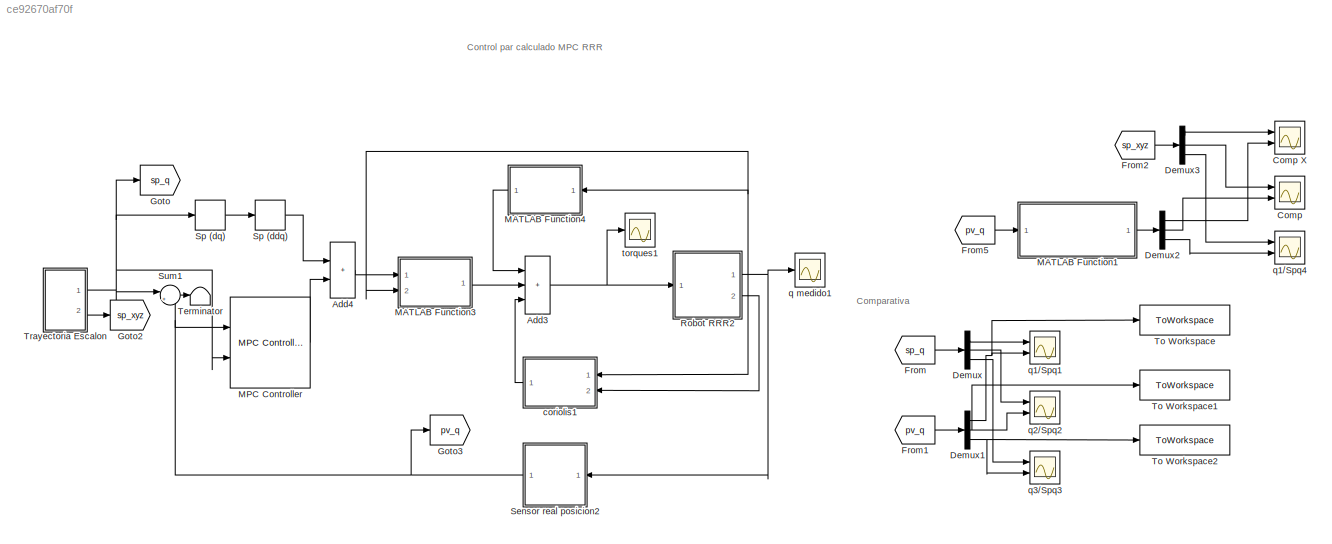
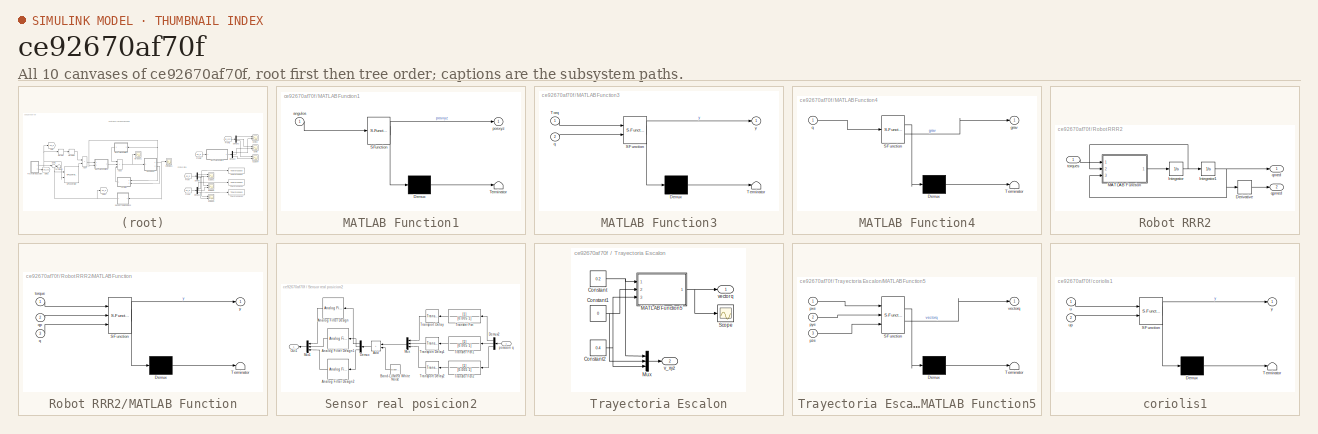
[diagram: thumbnail index - all 10 canvases of the model, root first then tree order]
MODEL slx_ce92670af70f
KIND model
CONFIG AbsTol = auto
CONFIG EnableMultiTasking = off
CONFIG FixedStep = auto
CONFIG MaxStep = auto
CONFIG MinStep = auto
CONFIG RelTol = 1e-3
CONFIG SampleTimeConstraint = Unconstrained
CONFIG SolverName = VariableStepAuto
CONFIG StartTime = 0.0
CONFIG StopTime = 110
BLOCK [Sum] Add3
  IconShape = rectangular
  Inputs = +++
  Ports = [3, 1]
BLOCK [Sum] Add4
  IconShape = rectangular
  Ports = [2, 1]
BLOCK [Scope] Comp
  Floating = off
  NumInputPorts = 2
  Ports = [2]
  ScopeSpecificationString = Simulink.scopes.TimeScopeBlockCfg('CurrentConfiguration', extmgr.ConfigurationSet(extmgr.Configuration('Core','General UI',true,'FigureColor',[1 1 1]),extmgr.Configuration('Core','Source UI',true),extmgr.Configuration('Sources','WiredSimulink',true,'DataLoggingVariableName','ScopeData1'),extmgr.Configuration('Visuals','Time Domain',true,'SerializedDisplays',{struct('MinYLimReal','-0.04339','MaxYLi...<+2048ch>
BLOCK [Scope] Comp X
  Floating = off
  NumInputPorts = 2
  Ports = [2]
  ScopeSpecificationString = Simulink.scopes.TimeScopeBlockCfg('CurrentConfiguration', extmgr.ConfigurationSet(extmgr.Configuration('Core','General UI',true,'FigureColor',[1 1 1]),extmgr.Configuration('Core','Source UI',true),extmgr.Configuration('Sources','WiredSimulink',true,'DataLoggingVariableName','ScopeData2'),extmgr.Configuration('Visuals','Time Domain',true,'SerializedDisplays',{struct('MinYLimReal','0.07687','MaxYLim...<+2042ch>
BLOCK [Demux] Demux
  Outputs = 3
  Ports = [1, 3]
BLOCK [Demux] Demux1
  Outputs = 3
  Ports = [1, 3]
BLOCK [Demux] Demux2
  Outputs = 3
  Ports = [1, 3]
BLOCK [Demux] Demux3
  Outputs = 3
  Ports = [1, 3]
BLOCK [From] From
  GotoTag = sp_q
BLOCK [From] From1
  GotoTag = pv_q
BLOCK [From] From2
  GotoTag = sp_xyz
BLOCK [From] From5
  GotoTag = pv_q
BLOCK [Goto] Goto
  GotoTag = sp_q
BLOCK [Goto] Goto2
  GotoTag = sp_xyz
BLOCK [Goto] Goto3
  GotoTag = pv_q
BLOCK [SubSystem] MATLAB Function1
  ErrorFcn = Stateflow.Translate.translate
  PermitHierarchicalResolution = ExplicitOnly
  Ports = [1, 1]
  RequestExecContextInheritance = off
  SFBlockType = MATLAB Function
  TreatAsAtomicUnit = on
BLOCK [Demux] MATLAB Function1/ Demux 
  Outputs = 1
  Ports = [1, 1]
BLOCK [S-Function] MATLAB Function1/ SFunction 
  EnableBusSupport = on
  FunctionName = sf_sfun
  PortCounts = [1 2]
  Ports = [1, 2]
  SFcnIsStateOwnerBlock = off
  SFunctionDeploymentMode = off
  Tag = Stateflow S-Function 1
BLOCK [Terminator] MATLAB Function1/ Terminator 
BLOCK [Inport] MATLAB Function1/angulos
BLOCK [Outport] MATLAB Function1/posxyz
BLOCK [SubSystem] MATLAB Function3
  ErrorFcn = Stateflow.Translate.translate
  PermitHierarchicalResolution = ExplicitOnly
  Ports = [2, 1]
  RequestExecContextInheritance = off
  SFBlockType = MATLAB Function
  TreatAsAtomicUnit = on
BLOCK [Demux] MATLAB Function3/ Demux 
  Outputs = 1
  Ports = [1, 1]
BLOCK [S-Function] MATLAB Function3/ SFunction 
  EnableBusSupport = on
  FunctionName = sf_sfun
  PortCounts = [2 2]
  Ports = [2, 2]
  SFcnIsStateOwnerBlock = off
  SFunctionDeploymentMode = off
  Tag = Stateflow S-Function 2
BLOCK [Terminator] MATLAB Function3/ Terminator 
BLOCK [Inport] MATLAB Function3/Torq
BLOCK [Inport] MATLAB Function3/q
  Port = 2
BLOCK [Outport] MATLAB Function3/y
BLOCK [SubSystem] MATLAB Function4
  ErrorFcn = Stateflow.Translate.translate
  PermitHierarchicalResolution = ExplicitOnly
  Ports = [1, 1]
  RequestExecContextInheritance = off
  SFBlockType = MATLAB Function
  TreatAsAtomicUnit = on
BLOCK [Demux] MATLAB Function4/ Demux 
  Outputs = 1
  Ports = [1, 1]
BLOCK [S-Function] MATLAB Function4/ SFunction 
  EnableBusSupport = on
  FunctionName = sf_sfun
  PortCounts = [1 2]
  Ports = [1, 2]
  SFcnIsStateOwnerBlock = off
  SFunctionDeploymentMode = off
  Tag = Stateflow S-Function 5
BLOCK [Terminator] MATLAB Function4/ Terminator 
BLOCK [Outport] MATLAB Function4/grav
BLOCK [Inport] MATLAB Function4/q
BLOCK [Reference] MPC Controller  REF=mpclib/MPC Controller  (lib defined in mdl_ae329e0e0455)
  Ports = [2, 1]
  SCDEnableBlockLinearizationSpecification = on
  SourceBlock = mpclib/MPC Controller
  SourceProductBaseCode = MP
  SourceType = MPC
BLOCK [SubSystem] Robot RRR2
  Ports = [1, 2]
  RequestExecContextInheritance = off
BLOCK [Derivative] Robot RRR2/Derivative
BLOCK [Integrator] Robot RRR2/Integrator
  Ports = [1, 1]
BLOCK [Integrator] Robot RRR2/Integrator1
  LimitOutput = on
  LowerSaturationLimit = -1.39626
  Ports = [1, 1]
  UpperSaturationLimit = 1.39626
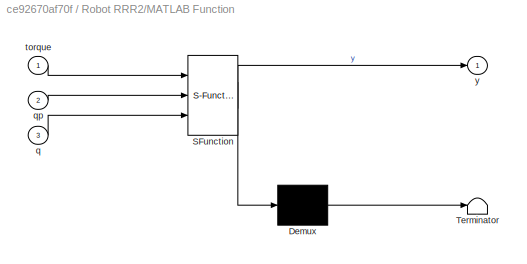
BLOCK [SubSystem] Robot RRR2/MATLAB Function
  ErrorFcn = Stateflow.Translate.translate
  PermitHierarchicalResolution = ExplicitOnly
  Ports = [3, 1]
  RequestExecContextInheritance = off
  SFBlockType = MATLAB Function
  TreatAsAtomicUnit = on
BLOCK [Demux] Robot RRR2/MATLAB Function/ Demux 
  Outputs = 1
  Ports = [1, 1]
BLOCK [S-Function] Robot RRR2/MATLAB Function/ SFunction 
  EnableBusSupport = on
  FunctionName = sf_sfun
  PortCounts = [3 2]
  Ports = [3, 2]
  SFcnIsStateOwnerBlock = off
  SFunctionDeploymentMode = off
  Tag = Stateflow S-Function 6
BLOCK [Terminator] Robot RRR2/MATLAB Function/ Terminator 
BLOCK [Inport] Robot RRR2/MATLAB Function/q
  Port = 3
BLOCK [Inport] Robot RRR2/MATLAB Function/qp
  Port = 2
BLOCK [Inport] Robot RRR2/MATLAB Function/torque
BLOCK [Outport] Robot RRR2/MATLAB Function/y
BLOCK [Outport] Robot RRR2/qmed
BLOCK [Outport] Robot RRR2/qpmed
  Port = 2
BLOCK [Inport] Robot RRR2/torques
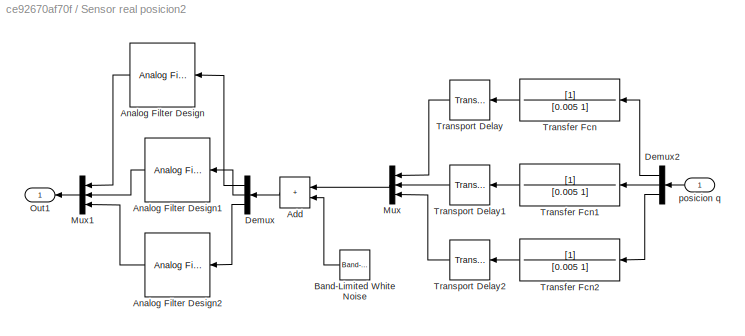
BLOCK [SubSystem] Sensor real posicion2
  NameLocation = top
  Ports = [1, 1]
  RequestExecContextInheritance = off
BLOCK [Sum] Sensor real posicion2/Add
  IconShape = rectangular
  Ports = [2, 1]
BLOCK [Reference] Sensor real posicion2/Analog Filter Design  REF=dsparch4/Analog
Filter Design
  Ports = [1, 1]
  SourceBlock = dsparch4/Analog\nFilter Design
  SourceProductBaseCode = DS
  SourceType = Analog Filter Design
BLOCK [Reference] Sensor real posicion2/Analog Filter Design1  REF=dsparch4/Analog
Filter Design
  Ports = [1, 1]
  SourceBlock = dsparch4/Analog\nFilter Design
  SourceProductBaseCode = DS
  SourceType = Analog Filter Design
BLOCK [Reference] Sensor real posicion2/Analog Filter Design2  REF=dsparch4/Analog
Filter Design
  Ports = [1, 1]
  SourceBlock = dsparch4/Analog\nFilter Design
  SourceProductBaseCode = DS
  SourceType = Analog Filter Design
BLOCK [Reference] Sensor real posicion2/Band-Limited White Noise  REF=simulink/Sources/Band-Limited
White Noise
  NameLocation = top
  Ports = [0, 1]
  SourceBlock = simulink/Sources/Band-Limited\nWhite Noise
  SourceProductBaseCode = SL
  SourceType = Band-Limited White Noise.
BLOCK [Demux] Sensor real posicion2/Demux
  NameLocation = top
  Outputs = 3
  Ports = [1, 3]
BLOCK [Demux] Sensor real posicion2/Demux2
  NameLocation = top
  Outputs = 3
  Ports = [1, 3]
BLOCK [Mux] Sensor real posicion2/Mux
  DisplayOption = bar
  Inputs = 3
  NameLocation = top
  Ports = [3, 1]
BLOCK [Mux] Sensor real posicion2/Mux1
  DisplayOption = bar
  Inputs = 3
  NameLocation = top
  Ports = [3, 1]
BLOCK [Outport] Sensor real posicion2/Out1
BLOCK [TransferFcn] Sensor real posicion2/Transfer Fcn
  Denominator = [0.005 1]
BLOCK [TransferFcn] Sensor real posicion2/Transfer Fcn1
  Denominator = [0.005 1]
BLOCK [TransferFcn] Sensor real posicion2/Transfer Fcn2
  Denominator = [0.005 1]
BLOCK [TransportDelay] Sensor real posicion2/Transport Delay
  DelayTime = 0.05
  NameLocation = top
  Ports = [1, 1]
BLOCK [TransportDelay] Sensor real posicion2/Transport Delay1
  DelayTime = 0.05
  NameLocation = top
  Ports = [1, 1]
BLOCK [TransportDelay] Sensor real posicion2/Transport Delay2
  DelayTime = 0.05
  NameLocation = top
  Ports = [1, 1]
BLOCK [Inport] Sensor real posicion2/posicion q
BLOCK [Derivative] Sp (ddq)
BLOCK [Derivative] Sp (dq)
BLOCK [Sum] Sum1
  Inputs = |+-
  NameLocation = top
  Ports = [2, 1]
BLOCK [Terminator] Terminator
BLOCK [ToWorkspace] To Workspace
  FixptAsFi = on
  MaxDataPoints = inf
  Ports = [1]
  SampleTime = 0.1
  VariableName = q1
BLOCK [ToWorkspace] To Workspace1
  FixptAsFi = on
  MaxDataPoints = inf
  Ports = [1]
  SampleTime = 0.1
  VariableName = q2
BLOCK [ToWorkspace] To Workspace2
  FixptAsFi = on
  MaxDataPoints = inf
  Ports = [1]
  SampleTime = 0.1
  VariableName = q3
BLOCK [SubSystem] Trayectoria Escalon
  Ports = [0, 2]
  RequestExecContextInheritance = off
BLOCK [Constant] Trayectoria Escalon/Constant
  Value = 0.2
BLOCK [Constant] Trayectoria Escalon/Constant1
  Value = 0
BLOCK [Constant] Trayectoria Escalon/Constant2
  Value = 0.4
BLOCK [SubSystem] Trayectoria Escalon/MATLAB Function5
  ErrorFcn = Stateflow.Translate.translate
  PermitHierarchicalResolution = ExplicitOnly
  Ports = [3, 1]
  RequestExecContextInheritance = off
  SFBlockType = MATLAB Function
  TreatAsAtomicUnit = on
BLOCK [Demux] Trayectoria Escalon/MATLAB Function5/ Demux 
  Outputs = 1
  Ports = [1, 1]
BLOCK [S-Function] Trayectoria Escalon/MATLAB Function5/ SFunction 
  EnableBusSupport = on
  FunctionName = sf_sfun
  PortCounts = [3 2]
  Ports = [3, 2]
  SFcnIsStateOwnerBlock = off
  SFunctionDeploymentMode = off
  Tag = Stateflow S-Function 10
BLOCK [Terminator] Trayectoria Escalon/MATLAB Function5/ Terminator 
BLOCK [Inport] Trayectoria Escalon/MATLAB Function5/pxe
BLOCK [Inport] Trayectoria Escalon/MATLAB Function5/pye
  Port = 2
BLOCK [Inport] Trayectoria Escalon/MATLAB Function5/pze
  Port = 3
BLOCK [Outport] Trayectoria Escalon/MATLAB Function5/vectorq
BLOCK [Mux] Trayectoria Escalon/Mux
  DisplayOption = bar
  Inputs = 3
  Ports = [3, 1]
BLOCK [Scope] Trayectoria Escalon/Scope
  Floating = off
  NumInputPorts = 1
  Ports = [1]
  ScopeSpecificationString = Simulink.scopes.TimeScopeBlockCfg('CurrentConfiguration', extmgr.ConfigurationSet(extmgr.Configuration('Core','General UI',true),extmgr.Configuration('Core','Source UI',true),extmgr.Configuration('Sources','WiredSimulink',true,'DataLoggingVariableName','ScopeData4'),extmgr.Configuration('Visuals','Time Domain',true,'SerializedDisplays',{struct('MinYLimReal','-0.13839','MaxYLimReal','1.24554','YLab...<+1444ch>
BLOCK [Outport] Trayectoria Escalon/v_xyz
  Port = 2
BLOCK [Outport] Trayectoria Escalon/vectorq
BLOCK [SubSystem] coriolis1
  ErrorFcn = Stateflow.Translate.translate
  PermitHierarchicalResolution = ExplicitOnly
  Ports = [2, 1]
  RequestExecContextInheritance = off
  SFBlockType = MATLAB Function
  TreatAsAtomicUnit = on
BLOCK [Demux] coriolis1/ Demux 
  Outputs = 1
  Ports = [1, 1]
BLOCK [S-Function] coriolis1/ SFunction 
  EnableBusSupport = on
  FunctionName = sf_sfun
  PortCounts = [2 2]
  Ports = [2, 2]
  SFcnIsStateOwnerBlock = off
  SFunctionDeploymentMode = off
  Tag = Stateflow S-Function 7
BLOCK [Terminator] coriolis1/ Terminator 
BLOCK [Inport] coriolis1/u
BLOCK [Inport] coriolis1/up
  Port = 2
BLOCK [Outport] coriolis1/y
BLOCK [Scope] q medido1
  Floating = off
  NumInputPorts = 1
  Ports = [1]
  ScopeSpecificationString = Simulink.scopes.TimeScopeBlockCfg('CurrentConfiguration', extmgr.ConfigurationSet(extmgr.Configuration('Core','General UI',true,'FigureColor',[1 1 1]),extmgr.Configuration('Core','Source UI',true),extmgr.Configuration('Sources','WiredSimulink',true,'DataLoggingVariableName','ScopeData7'),extmgr.Configuration('Visuals','Time Domain',true,'SerializedDisplays',{struct('MinYLimReal','-0.48397','MaxYLi...<+2123ch>
BLOCK [Scope] q1//Spq1
  Floating = off
  NumInputPorts = 2
  Ports = [2]
  ScopeSpecificationString = Simulink.scopes.TimeScopeBlockCfg('CurrentConfiguration', extmgr.ConfigurationSet(extmgr.Configuration('Core','General UI',true,'FigureColor',[1 1 1]),extmgr.Configuration('Core','Source UI',true),extmgr.Configuration('Sources','WiredSimulink',true,'DataLoggingVariableName','ScopeData3'),extmgr.Configuration('Visuals','Time Domain',true,'SerializedDisplays',{struct('MinYLimReal','-0.04068','MaxYLi...<+2043ch>
BLOCK [Scope] q1//Spq4
  Floating = off
  NumInputPorts = 2
  Ports = [2]
  ScopeSpecificationString = Simulink.scopes.TimeScopeBlockCfg('CurrentConfiguration', extmgr.ConfigurationSet(extmgr.Configuration('Core','General UI',true,'FigureColor',[1 1 1]),extmgr.Configuration('Core','Source UI',true),extmgr.Configuration('Sources','WiredSimulink',true,'DataLoggingVariableName','ScopeData4'),extmgr.Configuration('Visuals','Time Domain',true,'SerializedDisplays',{struct('MinYLimReal','0.15226','MaxYLim...<+2046ch>
BLOCK [Scope] q2//Spq2
  Floating = off
  NumInputPorts = 2
  Ports = [2]
  ScopeSpecificationString = Simulink.scopes.TimeScopeBlockCfg('CurrentConfiguration', extmgr.ConfigurationSet(extmgr.Configuration('Core','General UI',true,'FigureColor',[1 1 1]),extmgr.Configuration('Core','Source UI',true),extmgr.Configuration('Sources','WiredSimulink',true,'DataLoggingVariableName','ScopeData5'),extmgr.Configuration('Visuals','Time Domain',true,'SerializedDisplays',{struct('MinYLimReal','-0.14831','MaxYLi...<+2047ch>
BLOCK [Scope] q3//Spq3
  Floating = off
  NumInputPorts = 2
  Ports = [2]
  ScopeSpecificationString = Simulink.scopes.TimeScopeBlockCfg('CurrentConfiguration', extmgr.ConfigurationSet(extmgr.Configuration('Core','General UI',true,'FigureColor',[1 1 1]),extmgr.Configuration('Core','Source UI',true),extmgr.Configuration('Sources','WiredSimulink',true,'DataLoggingVariableName','ScopeData6'),extmgr.Configuration('Visuals','Time Domain',true,'SerializedDisplays',{struct('MinYLimReal','-0.10499','MaxYLi...<+2047ch>
BLOCK [Scope] torques1
  Floating = off
  NumInputPorts = 1
  Ports = [1]
  ScopeSpecificationString = Simulink.scopes.TimeScopeBlockCfg('CurrentConfiguration', extmgr.ConfigurationSet(extmgr.Configuration('Core','General UI',true,'FigureColor',[0 0 0]),extmgr.Configuration('Core','Source UI',true),extmgr.Configuration('Sources','WiredSimulink',true,'DataLoggingVariableName','ScopeData8'),extmgr.Configuration('Visuals','Time Domain',true,'SerializedDisplays',{struct('MinYLimReal','-6.54498','MaxYLi...<+2402ch>
ANNOTATION (root): Control par calculado MPC RRR
ANNOTATION (root): Comparativa
NET Add3:1 -> Robot RRR2:1, torques1:1
LINE Add4:1 -> MATLAB Function3:1
NET Demux1:1 -> To Workspace:1, q1//Spq1:2
NET Demux1:2 -> To Workspace1:1, q2//Spq2:2
NET Demux1:3 -> To Workspace2:1, q3//Spq3:2
LINE Demux2:1 -> Comp X:2
LINE Demux2:2 -> Comp:2
LINE Demux2:3 -> q1//Spq4:2
LINE Demux3:1 -> Comp X:1
LINE Demux3:2 -> Comp:1
LINE Demux3:3 -> q1//Spq4:1
LINE Demux:1 -> q1//Spq1:1
LINE Demux:2 -> q2//Spq2:1
LINE Demux:3 -> q3//Spq3:1
LINE From1:1 -> Demux1:1
LINE From2:1 -> Demux3:1
LINE From5:1 -> MATLAB Function1:1
LINE From:1 -> Demux:1
LINE MATLAB Function1:1 -> Demux2:1
LINE MATLAB Function3:1 -> Add3:2
LINE MATLAB Function4:1 -> Add3:1
LINE MPC Controller:1 -> Add4:2
LINE Robot RRR2/Derivative:1 -> Robot RRR2/qpmed:1
NET Robot RRR2/Integrator1:1 -> Robot RRR2/Derivative:1, Robot RRR2/MATLAB Function:3, Robot RRR2/qmed:1
NET Robot RRR2/Integrator:1 -> Robot RRR2/Integrator1:1, Robot RRR2/MATLAB Function:2
LINE Robot RRR2/MATLAB Function:1 -> Robot RRR2/Integrator:1
LINE Robot RRR2/torques:1 -> Robot RRR2/MATLAB Function:1
NET Robot RRR2:1 -> MATLAB Function3:2, MATLAB Function4:1, Sensor real posicion2:1, coriolis1:1, q medido1:1
LINE Robot RRR2:2 -> coriolis1:2
LINE Sensor real posicion2/Add:1 -> Sensor real posicion2/Demux:1
LINE Sensor real posicion2/Analog Filter Design1:1 -> Sensor real posicion2/Mux1:2
LINE Sensor real posicion2/Analog Filter Design2:1 -> Sensor real posicion2/Mux1:3
LINE Sensor real posicion2/Analog Filter Design:1 -> Sensor real posicion2/Mux1:1
LINE Sensor real posicion2/Band-Limited White Noise:1 -> Sensor real posicion2/Add:2
LINE Sensor real posicion2/Demux2:1 -> Sensor real posicion2/Transfer Fcn:1
LINE Sensor real posicion2/Demux2:2 -> Sensor real posicion2/Transfer Fcn1:1
LINE Sensor real posicion2/Demux2:3 -> Sensor real posicion2/Transfer Fcn2:1
LINE Sensor real posicion2/Demux:1 -> Sensor real posicion2/Analog Filter Design:1
LINE Sensor real posicion2/Demux:2 -> Sensor real posicion2/Analog Filter Design1:1
LINE Sensor real posicion2/Demux:3 -> Sensor real posicion2/Analog Filter Design2:1
LINE Sensor real posicion2/Mux1:1 -> Sensor real posicion2/Out1:1
LINE Sensor real posicion2/Mux:1 -> Sensor real posicion2/Add:1
LINE Sensor real posicion2/Transfer Fcn1:1 -> Sensor real posicion2/Transport Delay1:1
LINE Sensor real posicion2/Transfer Fcn2:1 -> Sensor real posicion2/Transport Delay2:1
LINE Sensor real posicion2/Transfer Fcn:1 -> Sensor real posicion2/Transport Delay:1
LINE Sensor real posicion2/Transport Delay1:1 -> Sensor real posicion2/Mux:2
LINE Sensor real posicion2/Transport Delay2:1 -> Sensor real posicion2/Mux:3
LINE Sensor real posicion2/Transport Delay:1 -> Sensor real posicion2/Mux:1
LINE Sensor real posicion2/posicion q:1 -> Sensor real posicion2/Demux2:1
NET Sensor real posicion2:1 -> Goto3:1, MPC Controller:1, Sum1:2
LINE Sp (ddq):1 -> Add4:1
LINE Sp (dq):1 -> Sp (ddq):1
LINE Sum1:1 -> Terminator:1
NET Trayectoria Escalon/Constant1:1 -> Trayectoria Escalon/MATLAB Function5:2, Trayectoria Escalon/Mux:2
NET Trayectoria Escalon/Constant2:1 -> Trayectoria Escalon/MATLAB Function5:3, Trayectoria Escalon/Mux:3
NET Trayectoria Escalon/Constant:1 -> Trayectoria Escalon/MATLAB Function5:1, Trayectoria Escalon/Mux:1
NET Trayectoria Escalon/MATLAB Function5:1 -> Trayectoria Escalon/Scope:1, Trayectoria Escalon/vectorq:1
LINE Trayectoria Escalon/Mux:1 -> Trayectoria Escalon/v_xyz:1
NET Trayectoria Escalon:1 -> Goto:1, MPC Controller:2, Sp (dq):1, Sum1:1
LINE Trayectoria Escalon:2 -> Goto2:1
LINE coriolis1:1 -> Add3:3
note: NET lines group one-source signal fan-out (src -> all destinations, sorted); 1:1 wires keep LINE
CHART MATLAB Function1 states=1 transitions=1
  STATE_LABEL 'eML_blk_kernel()'
  STATE_LABEL 'SCRIPT:\n%% Funcion cinematica directa\nfunction posxyz = cindinRRR(angulos)\n%% Vector angulo de 3 dim.\nth1=angulos(1);\nth2=angulos(2);\nth3=angulos(3);\n%% Valores eslabones\nL1=0.2;L2=0.2;L3=0.2;\n%% pos\nxe=cos(th1)*(L3*cos(th2+th3) + L2*cos(th2));\nye=sin(th1)*(L3*cos(th2+th3) + L2*cos(th2));\nze=L1+(L3*sin(th2+th3)) +L2*sin(th2);\nposxyz=[xe;ye;ze];\n'
CHART MATLAB Function3 states=1 transitions=1
  STATE_LABEL 'eML_blk_kernel()'
  STATE_LABEL 'SCRIPT:\nfunction y = inercia(Torq, q)\n\ntau1c=Torq(1);\ntau2c=Torq(2);\ntau3c=Torq(3);\nth1=q(1);\nth2=q(2);\nth3=q(3);\n\nTauc=[tau1c;\n      tau2c;\n      tau3c];\n\nL1=1;\nL2=1;\nL3=1;\nm1=1;\nm2=1;\nm3=1;\ng=9.81;\n\nM11=(L2^2*m2)/8 + (L2^2*m3)/2 + (L3^2*m3)/8 + (L2^2*m2*cos(2*th2))/8 + (L2^2*m3*cos(2*th2))/2 + (L3^2*m3*cos(2*th2 + 2*th3))/8 + (L2*L3*m3*cos(th3))/2 + (L2*L3*m3*cos(2*th2 + th3))/2;\nM12=0;\nM13=0;\n\n...<+229ch>'
CHART MATLAB Function4 states=1 transitions=1
  STATE_LABEL 'eML_blk_kernel()'
  STATE_LABEL 'SCRIPT:\nfunction grav = fcn(q)\n\nth1 = q(1);\nth2 = q(2);\nth3 = q(3);\n\n\ng = 9.81;\nL1=0.2;\nL2=0.2;\nL3=0.2;\n\nm1=1;\nm2=1;\nm3=1;\ng=9.81;\n\n\ng1=0;\ng2=(L3*m3*cos(th2 + th3))/2 + (L2*m2*cos(th2))/2 + L2*m3*cos(th2);\ng3=(L3*m3*cos(th2 + th3))/2;\n\ngrav = g*[g1;\n          g2;\n          g3];\n'
CHART Robot RRR2/MATLAB Function states=1 transitions=1
  STATE_LABEL 'eML_blk_kernel()'
  STATE_LABEL 'SCRIPT:\nfunction y = din_inv(torque, qp,q)\n\ntau1 = torque(1);\ntau2 = torque(2);\ntau3 = torque(3);\n\nth1=q(1);\nth2=q(2);\nth3=q(3);\n\nth1p = qp(1);\nth2p = qp(2);\nth3p = qp(3);\n\nTau=[tau1;\n     tau2;\n     tau3];\n\nL1=0.2;\nL2=0.2;\nL3=0.2;\n\nm1=1;\nm2=1;\nm3=1;\n\ng=9.81;\n\nM11=(L2^2*m2)/8 + (L2^2*m3)/2 + (L3^2*m3)/8 + (L2^2*m2*cos(2*th2))/8 + (L2^2*m3*cos(2*th2))/2 + (L3^2*m3*cos(2*th2 + 2*th3))/8 + (L2*L3*m3*...<+1298ch>'
CHART coriolis1 states=1 transitions=1
  STATE_LABEL 'eML_blk_kernel()'
  STATE_LABEL 'SCRIPT:\nfunction y = coriolis(u,up)\n\nth1=u(1);\nth2=u(2);\nth3=u(3);\n\nth1p=up(1);\nth2p=up(2);\nth3p=up(3);\n\nL1=0.2;\nL2=0.2;\nL3=0.2;\nm1=1;\nm2=1;\nm3=1;\ng=9.81;\n\nC1=-(th1p*(L3^2*m3*th2p*sin(th2 + 2*th3) + L3^2*m3*th3p*sin(2*th2 + th3) + L2^2*m2*th2p*sin(2*th2) + 4*L2^2*m3*th2p*sin(2*th2) + L3^2*m3*th2p*sin(2*th2 + 2*th3) + L3^2*m3*th3p*sin(2*th2 + 2*th3) - L3^2*m3*th2p*sin(th2) - L3^2*m3*th3p*sin(th3) +...<+552ch>'
CHART Trayectoria 
Escalon/MATLAB Function5 states=1 transitions=1
  STATE_LABEL 'eML_blk_kernel()'
  STATE_LABEL 'SCRIPT:\nfunction vectorq = cininvRRR(pxe,pye,pze)\n%% Valores \nL1=0.2;L2=0.2;L3=0.2;\n%% angulos\nq1=atan2(pye,pxe);\ncq3=(pxe^2 +pye^2 +pze^2 -L2^2 -L3^2)/(2*L2*L3);\n%% Condicionante para la variable cq3\nif (cq3>=1)\n    cq3=1;\nend \n\nq3=atan2(sqrt(1-cq3),cq3);\nbeta=atan2(pze,sqrt(pxe^2 +pye^2));\nalfa=atan2(L3*sin(q3),L2 +L3*cq3);\nq2=beta-alfa;\nvectorq=[q1;q2;q3];\n'
CHART  states=0 transitions=0
CHART  states=0 transitions=0
CHART  states=0 transitions=0
CHART  states=0 transitions=0
CHART  states=0 transitions=0
CHART  states=0 transitions=0
